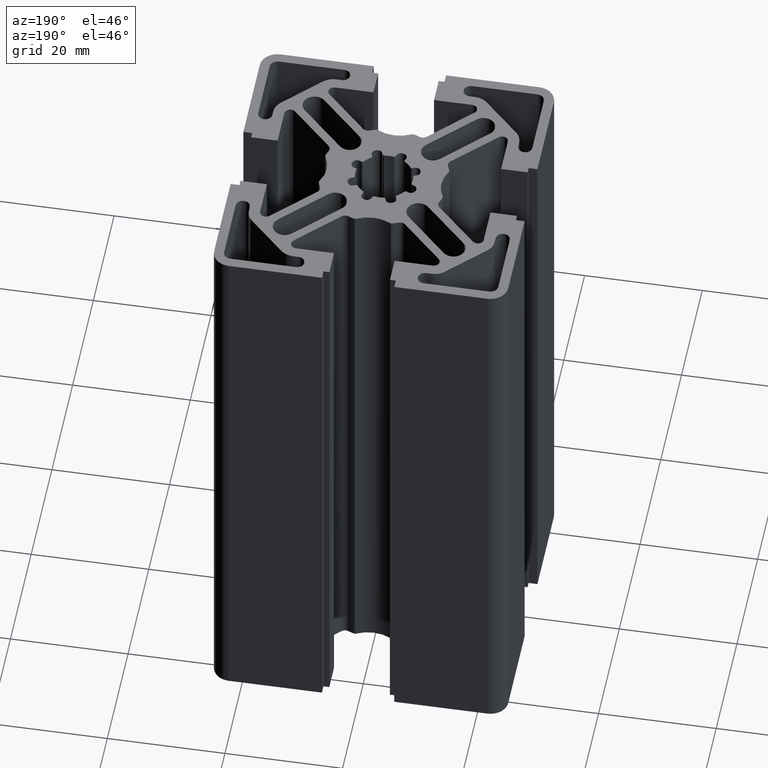
[diagram: clean part render]
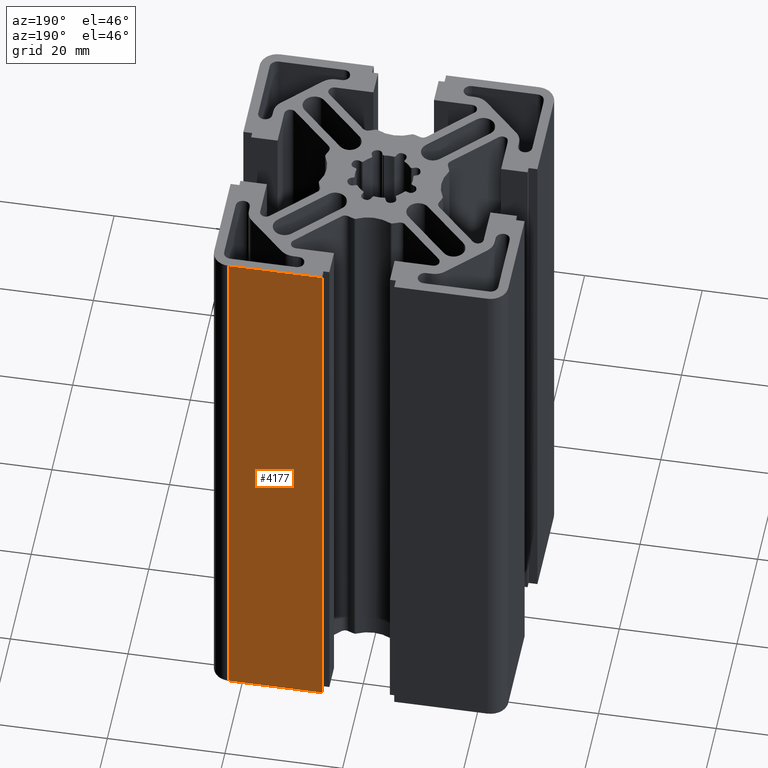
[diagram: same view with one face highlighted and labeled with its STEP entity id]
A machine part, auxiliary view. The second image highlights one B-rep face of the part: STEP entity #4177.
In plain terms, the highlighted planar face has unit normal (-0, 1, 0).
Its self-contained STEP definition (entity closure, byte-faithful):
#118=PLANE('',#4603);
#319=FACE_OUTER_BOUND('',#529,.T.);
#529=EDGE_LOOP('',(#3389,#3390,#3391,#3392));
#927=LINE('',#7072,#1319);
#928=LINE('',#7075,#1320);
#929=LINE('',#7077,#1321);
#930=LINE('',#7078,#1322);
#1319=VECTOR('',#5815,100.);
#1320=VECTOR('',#5818,15.8500000000116);
#1321=VECTOR('',#5819,15.8500000000116);
#1322=VECTOR('',#5820,100.);
#1965=VERTEX_POINT('',#7068);
#1966=VERTEX_POINT('',#7070);
#1967=VERTEX_POINT('',#7074);
#1968=VERTEX_POINT('',#7076);
#2573=EDGE_CURVE('',#1965,#1966,#927,.T.);
#2574=EDGE_CURVE('',#1967,#1965,#928,.T.);
#2575=EDGE_CURVE('',#1968,#1966,#929,.T.);
#2576=EDGE_CURVE('',#1967,#1968,#930,.T.);
#3389=ORIENTED_EDGE('',*,*,#2574,.T.);
#3390=ORIENTED_EDGE('',*,*,#2573,.T.);
#3391=ORIENTED_EDGE('',*,*,#2575,.F.);
#3392=ORIENTED_EDGE('',*,*,#2576,.F.);
#4177=ADVANCED_FACE('',(#319),#118,.T.);
#4603=AXIS2_PLACEMENT_3D('',#7073,#5816,#5817);
#5815=DIRECTION('',(0.,0.,1.));
#5816=DIRECTION('center_axis',(-1.12072986712868E-15,1.,0.));
#5817=DIRECTION('ref_axis',(-1.,-1.06581410364015E-15,0.));
#5818=DIRECTION('',(-1.,-1.12072986712868E-15,0.));
#5819=DIRECTION('',(-1.,-1.12072986712868E-15,0.));
#5820=DIRECTION('',(0.,0.,1.));
#7068=CARTESIAN_POINT('',(6.15000000000011,25.,0.));
#7070=CARTESIAN_POINT('',(6.15000000000011,25.,100.));
#7072=CARTESIAN_POINT('',(6.15000000000011,25.,0.));
#7073=CARTESIAN_POINT('Origin',(22.0000000000117,25.,0.));
#7074=CARTESIAN_POINT('',(22.0000000000117,25.,0.));
#7075=CARTESIAN_POINT('',(22.0000000000117,25.,0.));
#7076=CARTESIAN_POINT('',(22.0000000000117,25.,100.));
#7077=CARTESIAN_POINT('',(22.0000000000117,25.,100.));
#7078=CARTESIAN_POINT('',(22.0000000000117,25.,0.));